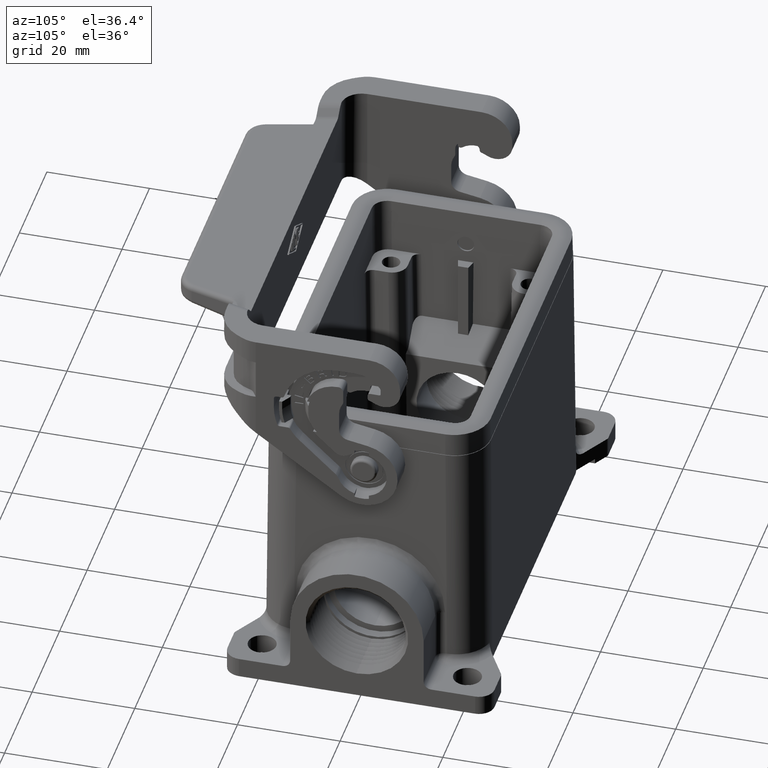
[diagram: clean part render]
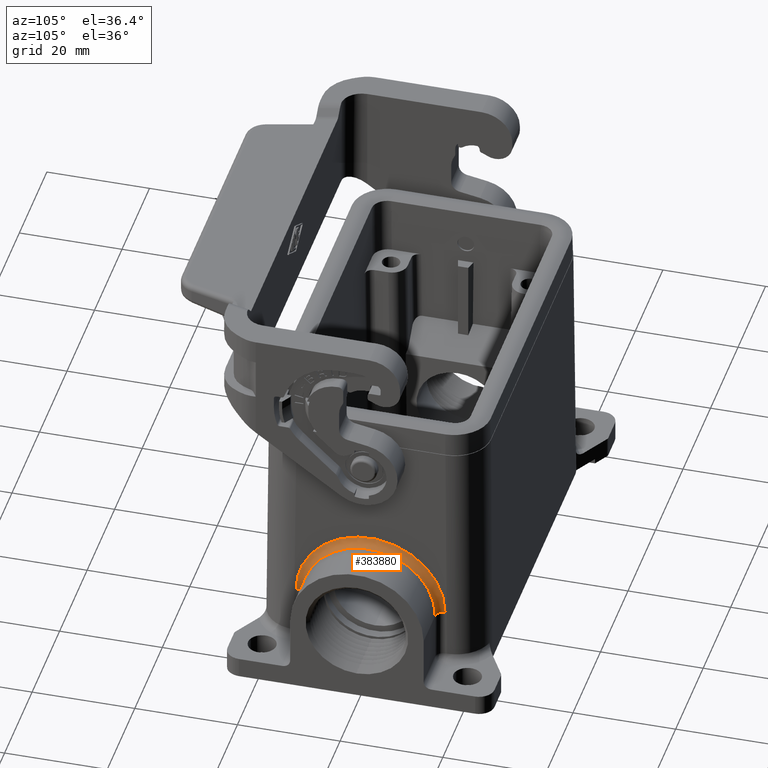
[diagram: same view with one face highlighted and labeled with its STEP entity id]
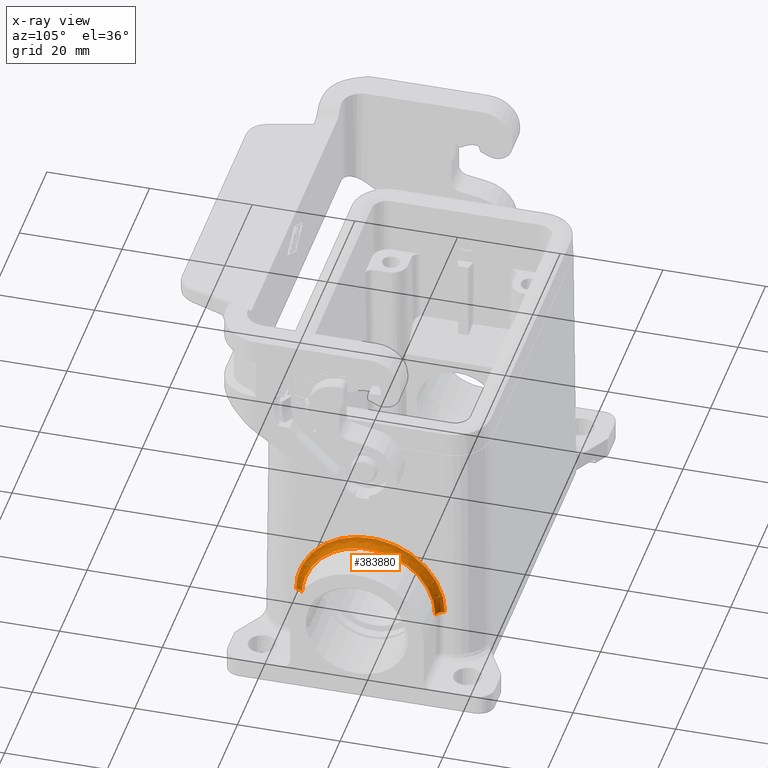
[diagram: x-ray of the same camera — body ghosted, the highlighted face saturated]
A machine part, auxiliary view. The second image highlights one B-rep face of the part: STEP entity #383880.
The next image is the same camera in x-ray: the body ghosted, the highlighted face saturated — about 0% of this face is hidden behind the body in this view.
In plain terms, the highlighted face is a freeform B-spline surface patch.
Its self-contained STEP definition (entity closure, byte-faithful):
#318130=CARTESIAN_POINT('',(27.32493,76.725966907345,-36.5130898032476))
;
#318140=VERTEX_POINT('',#318130);
#318170=CARTESIAN_POINT('',(27.32493,76.725966907345,-36.5130898032476))
;
#318180=CARTESIAN_POINT('',(27.3249299931796,76.7253161365206,
-36.4385188529285));
#318190=CARTESIAN_POINT('',(27.3255052100083,76.7246653754584,
-36.3639490212643));
#318200=CARTESIAN_POINT('',(27.3319115375464,76.7210419928671,
-35.9487505012209));
#318210=CARTESIAN_POINT('',(27.3491747524682,76.7180695320457,
-35.6081402281357));
#318220=CARTESIAN_POINT('',(27.4812943677985,76.7046896257576,
-34.074954827727));
#318230=CARTESIAN_POINT('',(27.7315582049131,76.6944276776374,
-32.8990520449294));
#318240=CARTESIAN_POINT('',(28.5155296999921,76.6746752970227,
-30.635653413453));
#318250=CARTESIAN_POINT('',(29.0462181852548,76.665260928831,
-29.5568736705437));
#318260=CARTESIAN_POINT('',(30.3607253735458,76.6477864910288,
-27.5545014310251));
#318270=CARTESIAN_POINT('',(31.139471418905,76.6397936513064,
-26.6386127165343));
#318280=CARTESIAN_POINT('',(32.9043932032024,76.6256616913577,
-25.0192505023262));
#318290=CARTESIAN_POINT('',(33.8837724354746,76.6195769883624,
-24.3220125996628));
#318300=CARTESIAN_POINT('',(35.9916050938939,76.6096483173953,
-23.1842995959585));
#318310=CARTESIAN_POINT('',(37.1119406937756,76.6058425692067,
-22.748204048295));
#318320=CARTESIAN_POINT('',(39.4342522004192,76.6007222142623,
-22.1614694870344));
#318330=CARTESIAN_POINT('',(40.627285077483,76.599427324379,
-22.0130898032476));
#318340=CARTESIAN_POINT('',(43.0225749224287,76.599427324379,
-22.0130898032476));
#318350=CARTESIAN_POINT('',(44.2156077994054,76.6007222142621,
-22.1614694870125));
#318360=CARTESIAN_POINT('',(46.5379193058885,76.6058425692057,
-22.7482040481876));
#318370=CARTESIAN_POINT('',(47.6582549056992,76.6096483173938,
-23.1842995957884));
#318380=CARTESIAN_POINT('',(49.7660875640822,76.6195769883599,
-24.3220125993741));
#318390=CARTESIAN_POINT('',(50.7454667963798,76.6256616913549,
-25.019250502002));
#318400=CARTESIAN_POINT('',(52.5103885807361,76.639793651303,
-26.6386127161458));
#318410=CARTESIAN_POINT('',(53.2891346261284,76.6477864910252,
-27.5545014306084));
#318420=CARTESIAN_POINT('',(54.6036418144924,76.6652609288269,
-29.5568736700792));
#318430=CARTESIAN_POINT('',(55.1343302997941,76.6746752970185,
-30.6356534129688));
#318440=CARTESIAN_POINT('',(55.9183017949555,76.6944276776329,
-32.8990520444167));
#318450=CARTESIAN_POINT('',(56.1685656321127,76.7046896257531,
-34.074954827205));
#318460=CARTESIAN_POINT('',(56.300685247514,76.7180695320427,
-35.6081402277843));
#318470=CARTESIAN_POINT('',(56.3179484624509,76.7210419928656,
-35.9487505010451));
#318480=CARTESIAN_POINT('',(56.3243547899917,76.7246653754585,
-36.3639490212643));
#318490=CARTESIAN_POINT('',(56.3249300068204,76.7253161365206,
-36.4385188529284));
#318500=CARTESIAN_POINT('',(56.32493,76.725966907345,-36.5130898032476))
;
#318510=B_SPLINE_CURVE_WITH_KNOTS('',3,(#318170,#318180,#318190,#318200,
#318210,#318220,#318230,#318240,#318250,#318260,#318270,#318280,#318290,
#318300,#318310,#318320,#318330,#318340,#318350,#318360,#318370,#318380,
#318390,#318400,#318410,#318420,#318430,#318440,#318450,#318460,#318470,
#318480,#318490,#318500),.UNSPECIFIED.,.F.,.F.,(4,2,2,2,2,2,2,2,2,2,2,2,
2,2,2,2,4),(0.,0.212210779787105,1.18169443604258,4.58462173922191,
7.98754594506585,11.3903216523416,14.7930923705967,18.1958405535293,
21.598586357808,25.0013321618359,28.4040803445186,31.8068510627776,
35.2096267700617,38.6125509759174,42.0154782791102,42.9849619358702,
43.1971727156583),.UNSPECIFIED.);
#318520=CARTESIAN_POINT('',(56.32493,76.725966907345,-36.5130898032476))
;
#318530=VERTEX_POINT('',#318520);
#318540=EDGE_CURVE('',#318140,#318530,#318510,.T.);
#337210=CARTESIAN_POINT('',(54.82493,78.2259097919413,-36.5));
#337220=VERTEX_POINT('',#337210);
#337250=CARTESIAN_POINT('',(28.82493,78.2259097919413,-36.5));
#337260=CARTESIAN_POINT('',(28.82493,78.2252590209226,-36.4331432659632)
);
#337270=CARTESIAN_POINT('',(28.8254457206806,78.2246082594988,
-36.3662875176621));
#337280=CARTESIAN_POINT('',(28.8311893200993,78.2209848767525,
-35.9940405527395));
#337290=CARTESIAN_POINT('',(28.8466666800759,78.2180124160284,
-35.6886658351427));
#337300=CARTESIAN_POINT('',(28.9651187244948,78.2046325125075,
-34.3140861052708));
#337310=CARTESIAN_POINT('',(29.1894932761661,78.1943705606046,
-33.2598280493206));
#337320=CARTESIAN_POINT('',(29.8923641558178,78.174618183248,
-31.2305744385781));
#337330=CARTESIAN_POINT('',(30.3681539394299,78.1652038126979,
-30.2633923578323));
#337340=CARTESIAN_POINT('',(31.5466775271125,78.1477293763544,
-28.4681622239739));
#337350=CARTESIAN_POINT('',(32.2448636716705,78.1397365360299,
-27.6470205560163));
#337360=CARTESIAN_POINT('',(33.8272073688396,78.1256045758267,
-26.195178544725));
#337370=CARTESIAN_POINT('',(34.7052713850381,78.1195198735305,
-25.5700687727918));
#337380=CARTESIAN_POINT('',(36.5950526068252,78.1095912014196,
-24.5500501002489));
#337390=CARTESIAN_POINT('',(37.599491119346,78.1057854542759,
-24.1590679924242));
#337400=CARTESIAN_POINT('',(39.6815638892422,78.1006650983856,
-23.6330300127376));
#337410=CARTESIAN_POINT('',(40.7511791543952,78.0993702089753,-23.5));
#337420=CARTESIAN_POINT('',(42.8986808455256,78.0993702089753,-23.5));
#337430=CARTESIAN_POINT('',(43.9682961106005,78.1006650983854,
-23.633030012718));
#337440=CARTESIAN_POINT('',(46.0503688803528,78.1057854542749,
-24.1590679923279));
#337450=CARTESIAN_POINT('',(47.0548073928099,78.1095912014182,
-24.5500501000964));
#337460=CARTESIAN_POINT('',(48.9445886145645,78.119519873528,
-25.5700687725329));
#337470=CARTESIAN_POINT('',(49.8226526307858,78.1256045758239,
-26.1951785444344));
#337480=CARTESIAN_POINT('',(51.4049963280078,78.1397365360265,
-27.647020555668));
#337490=CARTESIAN_POINT('',(52.1031824725955,78.1477293763507,
-28.4681622236003));
#337500=CARTESIAN_POINT('',(53.2817060603434,78.1652038126939,
-30.2633923574158));
#337510=CARTESIAN_POINT('',(53.7574958439904,78.1746181832438,
-31.2305744381441));
#337520=CARTESIAN_POINT('',(54.460366723716,78.1943705606001,
-33.259828048861));
#337530=CARTESIAN_POINT('',(54.6847412754256,78.204632512503,
-34.3140861048027));
#337540=CARTESIAN_POINT('',(54.8031933199081,78.2180124160253,
-35.6886658348277));
#337550=CARTESIAN_POINT('',(54.8186706798982,78.220984876751,
-35.994040552582));
#337560=CARTESIAN_POINT('',(54.8244142793194,78.2246082594988,
-36.3662875176622));
#337570=CARTESIAN_POINT('',(54.82493,78.2252590209226,-36.4331432659632)
);
#337580=CARTESIAN_POINT('',(54.82493,78.2259097919413,-36.5));
#337590=B_SPLINE_CURVE_WITH_KNOTS('',3,(#337250,#337260,#337270,#337280,
#337290,#337300,#337310,#337320,#337330,#337340,#337350,#337360,#337370,
#337380,#337390,#337400,#337410,#337420,#337430,#337440,#337450,#337460,
#337470,#337480,#337490,#337500,#337510,#337520,#337530,#337540,#337550,
#337560,#337570,#337580),.UNSPECIFIED.,.F.,.F.,(4,2,2,2,2,2,2,2,2,2,2,2,
2,2,2,2,4),(0.,0.212210779787105,1.18169443604258,4.58462173922191,
7.98754594506585,11.3903216523416,14.7930923705967,18.1958405535293,
21.598586357808,25.0013321618359,28.4040803445186,31.8068510627776,
35.2096267700617,38.6125509759174,42.0154782791102,42.9849619358702,
43.1971727156583),.UNSPECIFIED.);
#337600=CARTESIAN_POINT('',(28.82493,78.2259097919413,-36.5));
#337610=VERTEX_POINT('',#337600);
#337620=EDGE_CURVE('',#337610,#337220,#337590,.T.);
#382330=CARTESIAN_POINT('',(28.82493,78.2259097919413,-36.5));
#382340=CARTESIAN_POINT('',(28.82493,78.2252590209226,-36.4331432659632)
);
#382350=CARTESIAN_POINT('',(28.8254457206806,78.2246082594988,
-36.3662875176621));
#382360=CARTESIAN_POINT('',(28.8311893200993,78.2209848767525,
-35.9940405527395));
#382370=CARTESIAN_POINT('',(28.8466666800759,78.2180124160284,
-35.6886658351427));
#382380=CARTESIAN_POINT('',(28.9651187244948,78.2046325125075,
-34.3140861052708));
#382390=CARTESIAN_POINT('',(29.1894932761661,78.1943705606046,
-33.2598280493206));
#382400=CARTESIAN_POINT('',(29.8923641558178,78.174618183248,
-31.2305744385781));
#382410=CARTESIAN_POINT('',(30.3681539394299,78.1652038126979,
-30.2633923578323));
#382420=CARTESIAN_POINT('',(31.5466775271125,78.1477293763544,
-28.4681622239739));
#382430=CARTESIAN_POINT('',(32.2448636716705,78.1397365360299,
-27.6470205560163));
#382440=CARTESIAN_POINT('',(33.8272073688396,78.1256045758267,
-26.195178544725));
#382450=CARTESIAN_POINT('',(34.7052713850381,78.1195198735305,
-25.5700687727918));
#382460=CARTESIAN_POINT('',(36.5950526068252,78.1095912014196,
-24.5500501002489));
#382470=CARTESIAN_POINT('',(37.599491119346,78.1057854542759,
-24.1590679924242));
#382480=CARTESIAN_POINT('',(39.6815638892422,78.1006650983856,
-23.6330300127376));
#382490=CARTESIAN_POINT('',(40.7511791543952,78.0993702089753,-23.5));
#382500=CARTESIAN_POINT('',(42.8986808455256,78.0993702089753,-23.5));
#382510=CARTESIAN_POINT('',(43.9682961106005,78.1006650983854,
-23.633030012718));
#382520=CARTESIAN_POINT('',(46.0503688803528,78.1057854542749,
-24.1590679923279));
#382530=CARTESIAN_POINT('',(47.0548073928099,78.1095912014182,
-24.5500501000964));
#382540=CARTESIAN_POINT('',(48.9445886145645,78.119519873528,
-25.5700687725329));
#382550=CARTESIAN_POINT('',(49.8226526307858,78.1256045758239,
-26.1951785444344));
#382560=CARTESIAN_POINT('',(51.4049963280078,78.1397365360265,
-27.647020555668));
#382570=CARTESIAN_POINT('',(52.1031824725955,78.1477293763507,
-28.4681622236003));
#382580=CARTESIAN_POINT('',(53.2817060603434,78.1652038126939,
-30.2633923574158));
#382590=CARTESIAN_POINT('',(53.7574958439904,78.1746181832438,
-31.2305744381441));
#382600=CARTESIAN_POINT('',(54.460366723716,78.1943705606001,
-33.259828048861));
#382610=CARTESIAN_POINT('',(54.6847412754256,78.204632512503,
-34.3140861048027));
#382620=CARTESIAN_POINT('',(54.8031933199081,78.2180124160253,
-35.6886658348277));
#382630=CARTESIAN_POINT('',(54.8186706798982,78.220984876751,
-35.994040552582));
#382640=CARTESIAN_POINT('',(54.8244142793194,78.2246082594988,
-36.3662875176622));
#382650=CARTESIAN_POINT('',(54.82493,78.2252590209226,-36.4331432659632)
);
#382660=CARTESIAN_POINT('',(54.82493,78.2259097919413,-36.5));
#382670=CARTESIAN_POINT('',(28.82493,77.3472635929298,-36.5076678292136)
);
#382680=CARTESIAN_POINT('',(28.8248895976225,77.3466443134645,
-36.4408093463814));
#382690=CARTESIAN_POINT('',(28.8253659602793,77.3460248150419,
-36.3739519768042));
#382700=CARTESIAN_POINT('',(28.8308910467305,77.342575230001,
-36.0016974321685));
#382710=CARTESIAN_POINT('',(28.8461888033178,77.3397454807929,
-35.6963040082823));
#382720=CARTESIAN_POINT('',(28.9638397526193,77.3270073652581,
-34.3215827422147));
#382730=CARTESIAN_POINT('',(29.1876253620942,77.3172368084823,
-33.2670452873673));
#382740=CARTESIAN_POINT('',(29.8894999894984,77.2984286809105,
-31.2370191722587));
#382750=CARTESIAN_POINT('',(30.3649067053757,77.2894634222224,
-30.2692999543453));
#382760=CARTESIAN_POINT('',(31.5429159056982,77.2728216696094,
-28.4729311781468));
#382770=CARTESIAN_POINT('',(32.2410219631397,77.2652088596894,
-27.6511235745595));
#382780=CARTESIAN_POINT('',(33.8234482983096,77.2517484839256,
-26.1980494468653));
#382790=CARTESIAN_POINT('',(34.7017596659396,77.2459523102769,
-25.5723040182432));
#382800=CARTESIAN_POINT('',(36.5921930664759,77.2364944998298,
-24.551253779063));
#382810=CARTESIAN_POINT('',(37.5971528285606,77.232868876127,
-24.1598177119189));
#382820=CARTESIAN_POINT('',(39.6802843469734,77.2279910373624,
-23.6331943456692));
#382830=CARTESIAN_POINT('',(40.7505762076711,77.2267573746368,
-23.500000001293));
#382840=CARTESIAN_POINT('',(42.8992837922496,77.2267573746367,
-23.500000001293));
#382850=CARTESIAN_POINT('',(43.9695756528692,77.2279910373623,
-23.6331943456496));
#382860=CARTESIAN_POINT('',(46.052707171138,77.2328688761262,
-24.1598177118226));
#382870=CARTESIAN_POINT('',(47.0576669331591,77.2364944998284,
-24.5512537789103));
#382880=CARTESIAN_POINT('',(48.9481003336629,77.2459523102746,
-25.572304017984));
#382890=CARTESIAN_POINT('',(49.8264117013157,77.2517484839229,
-26.1980494465744));
#382900=CARTESIAN_POINT('',(51.4088380365386,77.2652088596861,
-27.651123574211));
#382910=CARTESIAN_POINT('',(52.1069440940099,77.272821669606,
-28.4729311777729));
#382920=CARTESIAN_POINT('',(53.2849532943978,77.2894634222184,
-30.2692999539286));
#382930=CARTESIAN_POINT('',(53.76036001031,77.2984286809066,
-31.2370191718244));
#382940=CARTESIAN_POINT('',(54.4622346377882,77.3172368084781,
-33.2670452869074));
#382950=CARTESIAN_POINT('',(54.6860202473013,77.3270073652537,
-34.3215827417466));
#382960=CARTESIAN_POINT('',(54.8036711966664,77.33974548079,
-35.6963040079673));
#382970=CARTESIAN_POINT('',(54.8189689532672,77.3425752299995,
-36.0016974320109));
#382980=CARTESIAN_POINT('',(54.8244940397206,77.3460248150419,
-36.3739519768042));
#382990=CARTESIAN_POINT('',(54.8249704023775,77.3466443134644,
-36.4408093463814));
#383000=CARTESIAN_POINT('',(54.82493,77.3472635929298,-36.5076678292136)
);
#383010=CARTESIAN_POINT('',(28.2036096564404,76.725966907345,
-36.5130898032476));
#383020=CARTESIAN_POINT('',(28.2035764206775,76.7253614946223,
-36.4437163765869));
#383030=CARTESIAN_POINT('',(28.2040822112314,76.7247467811785,
-36.3732771933535));
#383040=CARTESIAN_POINT('',(28.209922863142,76.721342725166,
-35.9832110099984));
#383050=CARTESIAN_POINT('',(28.2259865725547,76.718549942265,
-35.6631897873279));
#383060=CARTESIAN_POINT('',(28.3496469707374,76.7059706129203,
-34.2217414181838));
#383070=CARTESIAN_POINT('',(28.5839307604511,76.6963428402758,
-33.1185079464447));
#383080=CARTESIAN_POINT('',(29.3201486978506,76.6777683422278,
-30.9900812882876));
#383090=CARTESIAN_POINT('',(29.8176366395527,76.6689338388433,
-29.9777474715482));
#383100=CARTESIAN_POINT('',(31.0529915301189,76.652498287046,
-28.0944197769687));
#383110=CARTESIAN_POINT('',(31.7833993295035,76.6449963123342,
-27.2347786207854));
#383120=CARTESIAN_POINT('',(33.4426611781713,76.6317023640711,
-25.7114430344295));
#383130=CARTESIAN_POINT('',(34.3615233303859,76.6259904573847,
-25.0569233582126));
#383140=CARTESIAN_POINT('',(36.3436065628204,76.616649396671,
-23.9865438202568));
#383150=CARTESIAN_POINT('',(37.3949032119296,76.6130764311888,
-23.5771225280521));
#383160=CARTESIAN_POINT('',(39.5789399786447,76.6082587449688,
-23.0250703673474));
#383170=CARTESIAN_POINT('',(40.6985498744418,76.607042990648,
-22.8857587208418));
#383180=CARTESIAN_POINT('',(42.9513101254752,76.607042990648,
-22.8857587208418));
#383190=CARTESIAN_POINT('',(44.0709200211907,76.6082587449686,
-23.0250703673269));
#383200=CARTESIAN_POINT('',(46.2549567877545,76.6130764311879,
-23.5771225279511));
#383210=CARTESIAN_POINT('',(47.3062534367972,76.6166493966696,
-23.9865438200969));
#383220=CARTESIAN_POINT('',(49.2883366691976,76.6259904573822,
-25.056923357941));
#383230=CARTESIAN_POINT('',(50.2071988214361,76.6317023640684,
-25.7114430341247));
#383240=CARTESIAN_POINT('',(51.8664606701594,76.644996312331,
-27.2347786204203));
#383250=CARTESIAN_POINT('',(52.5968684695752,76.6524982870426,
-28.094419776577));
#383260=CARTESIAN_POINT('',(53.8322233602099,76.6689338388394,
-29.9777474711116));
#383270=CARTESIAN_POINT('',(54.3297113019486,76.6777683422238,
-30.9900812878326));
#383280=CARTESIAN_POINT('',(55.0659292394257,76.6963428402716,
-33.1185079459629));
#383290=CARTESIAN_POINT('',(55.3002130291794,76.705970612916,
-34.2217414176933));
#383300=CARTESIAN_POINT('',(55.4238734274287,76.7185499422621,
-35.6631897869979));
#383310=CARTESIAN_POINT('',(55.4399371368556,76.7213427251646,
-35.9832110098333));
#383320=CARTESIAN_POINT('',(55.4457777887686,76.7247467811785,
-36.3732771933535));
#383330=CARTESIAN_POINT('',(55.4462835793224,76.7253614946223,
-36.4437163765868));
#383340=CARTESIAN_POINT('',(55.4462503435596,76.725966907345,
-36.5130898032476));
#383350=CARTESIAN_POINT('',(27.32493,76.725966907345,-36.5130898032476))
;
#383360=CARTESIAN_POINT('',(27.3249299931796,76.7253161365206,
-36.4385188529285));
#383370=CARTESIAN_POINT('',(27.3255052100083,76.7246653754584,
-36.3639490212643));
#383380=CARTESIAN_POINT('',(27.3319115375464,76.7210419928671,
-35.9487505012209));
#383390=CARTESIAN_POINT('',(27.3491747524682,76.7180695320457,
-35.6081402281357));
#383400=CARTESIAN_POINT('',(27.4812943677985,76.7046896257576,
-34.074954827727));
#383410=CARTESIAN_POINT('',(27.7315582049131,76.6944276776374,
-32.8990520449294));
#383420=CARTESIAN_POINT('',(28.5155296999921,76.6746752970227,
-30.635653413453));
#383430=CARTESIAN_POINT('',(29.0462181852548,76.665260928831,
-29.5568736705437));
#383440=CARTESIAN_POINT('',(30.3607253735458,76.6477864910288,
-27.5545014310251));
#383450=CARTESIAN_POINT('',(31.139471418905,76.6397936513064,
-26.6386127165343));
#383460=CARTESIAN_POINT('',(32.9043932032024,76.6256616913577,
-25.0192505023262));
#383470=CARTESIAN_POINT('',(33.8837724354746,76.6195769883624,
-24.3220125996628));
#383480=CARTESIAN_POINT('',(35.9916050938939,76.6096483173953,
-23.1842995959585));
#383490=CARTESIAN_POINT('',(37.1119406937756,76.6058425692067,
-22.748204048295));
#383500=CARTESIAN_POINT('',(39.4342522004192,76.6007222142623,
-22.1614694870344));
#383510=CARTESIAN_POINT('',(40.627285077483,76.599427324379,
-22.0130898032476));
#383520=CARTESIAN_POINT('',(43.0225749224287,76.599427324379,
-22.0130898032476));
#383530=CARTESIAN_POINT('',(44.2156077994054,76.6007222142621,
-22.1614694870125));
#383540=CARTESIAN_POINT('',(46.5379193058885,76.6058425692057,
-22.7482040481876));
#383550=CARTESIAN_POINT('',(47.6582549056992,76.6096483173938,
-23.1842995957884));
#383560=CARTESIAN_POINT('',(49.7660875640822,76.6195769883599,
-24.3220125993741));
#383570=CARTESIAN_POINT('',(50.7454667963798,76.6256616913549,
-25.019250502002));
#383580=CARTESIAN_POINT('',(52.5103885807361,76.639793651303,
-26.6386127161458));
#383590=CARTESIAN_POINT('',(53.2891346261284,76.6477864910252,
-27.5545014306084));
#383600=CARTESIAN_POINT('',(54.6036418144924,76.6652609288269,
-29.5568736700792));
#383610=CARTESIAN_POINT('',(55.1343302997941,76.6746752970185,
-30.6356534129688));
#383620=CARTESIAN_POINT('',(55.9183017949555,76.6944276776329,
-32.8990520444167));
#383630=CARTESIAN_POINT('',(56.1685656321127,76.7046896257531,
-34.074954827205));
#383640=CARTESIAN_POINT('',(56.300685247514,76.7180695320427,
-35.6081402277843));
#383650=CARTESIAN_POINT('',(56.3179484624509,76.7210419928656,
-35.9487505010451));
#383660=CARTESIAN_POINT('',(56.3243547899917,76.7246653754585,
-36.3639490212643));
#383670=CARTESIAN_POINT('',(56.3249300068204,76.7253161365206,
-36.4385188529284));
#383680=CARTESIAN_POINT('',(56.32493,76.725966907345,-36.5130898032476))
;
#383690=(BOUNDED_SURFACE() B_SPLINE_SURFACE(3,3,((#382330,#382670,
#383010,#383350),(#382340,#382680,#383020,#383360),(#382350,#382690,
#383030,#383370),(#382360,#382700,#383040,#383380),(#382370,#382710,
#383050,#383390),(#382380,#382720,#383060,#383400),(#382390,#382730,
#383070,#383410),(#382400,#382740,#383080,#383420),(#382410,#382750,
#383090,#383430),(#382420,#382760,#383100,#383440),(#382430,#382770,
#383110,#383450),(#382440,#382780,#383120,#383460),(#382450,#382790,
#383130,#383470),(#382460,#382800,#383140,#383480),(#382470,#382810,
#383150,#383490),(#382480,#382820,#383160,#383500),(#382490,#382830,
#383170,#383510),(#382500,#382840,#383180,#383520),(#382510,#382850,
#383190,#383530),(#382520,#382860,#383200,#383540),(#382530,#382870,
#383210,#383550),(#382540,#382880,#383220,#383560),(#382550,#382890,
#383230,#383570),(#382560,#382900,#383240,#383580),(#382570,#382910,
#383250,#383590),(#382580,#382920,#383260,#383600),(#382590,#382930,
#383270,#383610),(#382600,#382940,#383280,#383620),(#382610,#382950,
#383290,#383630),(#382620,#382960,#383300,#383640),(#382630,#382970,
#383310,#383650),(#382640,#382980,#383320,#383660),(#382650,#382990,
#383330,#383670),(#382660,#383000,#383340,#383680)),.UNSPECIFIED.,.F.,
.F.,.F.) B_SPLINE_SURFACE_WITH_KNOTS((4,2,2,2,2,2,2,2,2,2,2,2,2,2,2,2,4)
,(4,4),(0.,0.212210779787105,1.18169443604258,4.58462173922191,
7.98754594506585,11.3903216523416,14.7930923705967,18.1958405535293,
21.598586357808,25.0013321618359,28.4040803445186,31.8068510627776,
35.2096267700617,38.6125509759174,42.0154782791102,42.9849619358702,
43.1971727156583),(0.,1.),.UNSPECIFIED.) GEOMETRIC_REPRESENTATION_ITEM()
 RATIONAL_B_SPLINE_SURFACE(((1.,0.804737854124364,0.804737854124364,1.),
(1.,0.804748652417522,0.804748652417522,1.),(1.,0.804759240220617,
0.804759240220617,1.),(1.,0.80481790192455,0.80481790192455,1.),(1.,
0.804866205888159,0.804866205888159,1.),(1.,0.805083394827656,
0.805083394827656,1.),(1.,0.80525007103118,0.80525007103118,1.),(1.,
0.80557044811891,0.80557044811891,1.),(1.,0.805723199003792,
0.805723199003792,1.),(1.,0.806006357404351,0.806006357404351,1.),(1.,
0.806135924657339,0.806135924657339,1.),(1.,0.806364735286785,
0.806364735286785,1.),(1.,0.806463297809535,0.806463297809535,1.),(1.,
0.806623953803557,0.806623953803557,1.),(1.,0.806685568848721,
0.806685568848721,1.),(1.,0.806768389463524,0.806768389463524,1.),(1.,
0.806789348109478,0.806789348109478,1.),(1.,0.80678934810947,
0.80678934810947,1.),(1.,0.806768389463533,0.806768389463533,1.),(1.,
0.806685568848733,0.806685568848733,1.),(1.,0.806623953803587,
0.806623953803587,1.),(1.,0.806463297809576,0.806463297809576,1.),(1.,
0.806364735286829,0.806364735286829,1.),(1.,0.806135924657388,
0.806135924657388,1.),(1.,0.806006357404413,0.806006357404413,1.),(1.,
0.805723199003856,0.805723199003856,1.),(1.,0.805570448118979,
0.805570448118979,1.),(1.,0.805250071031246,0.805250071031246,1.),(1.,
0.805083394827734,0.805083394827734,1.),(1.,0.804866205888214,
0.804866205888214,1.),(1.,0.804817901924572,0.804817901924572,1.),(1.,
0.804759240220625,0.804759240220625,1.),(1.,0.804748652417516,
0.804748652417516,1.),(1.,0.804737854124364,0.804737854124364,1.))) 
REPRESENTATION_ITEM('') SURFACE());
#383700=CARTESIAN_POINT('',(56.32493,76.725966907345,-36.5130898032476))
;
#383710=CARTESIAN_POINT('',(55.4462503435596,76.725966907345,
-36.5130898032476));
#383720=CARTESIAN_POINT('',(54.82493,77.3472635929298,-36.5076678292136)
);
#383730=CARTESIAN_POINT('',(54.82493,78.2259097919413,-36.5));
#383740=(BOUNDED_CURVE() B_SPLINE_CURVE(3,(#383700,#383710,#383720,
#383730),.UNSPECIFIED.,.F.,.F.) B_SPLINE_CURVE_WITH_KNOTS((4,4),(0.,1.),
.UNSPECIFIED.) CURVE() GEOMETRIC_REPRESENTATION_ITEM() 
RATIONAL_B_SPLINE_CURVE((1.,0.804737854124367,0.804737854124367,1.)) 
REPRESENTATION_ITEM(''));
#383750=EDGE_CURVE('',#318530,#337220,#383740,.T.);
#383760=ORIENTED_EDGE('',*,*,#383750,.T.);
#383770=ORIENTED_EDGE('',*,*,#318540,.T.);
#383780=CARTESIAN_POINT('',(28.82493,78.2259097919413,-36.5));
#383790=CARTESIAN_POINT('',(28.82493,77.3472635929298,-36.5076678292136)
);
#383800=CARTESIAN_POINT('',(28.2036096564404,76.725966907345,
-36.5130898032476));
#383810=CARTESIAN_POINT('',(27.32493,76.725966907345,-36.5130898032476))
;
#383820=(BOUNDED_CURVE() B_SPLINE_CURVE(3,(#383780,#383790,#383800,
#383810),.UNSPECIFIED.,.F.,.F.) B_SPLINE_CURVE_WITH_KNOTS((4,4),(0.,1.),
.UNSPECIFIED.) CURVE() GEOMETRIC_REPRESENTATION_ITEM() 
RATIONAL_B_SPLINE_CURVE((1.,0.804737854124367,0.804737854124367,1.)) 
REPRESENTATION_ITEM(''));
#383830=EDGE_CURVE('',#337610,#318140,#383820,.T.);
#383840=ORIENTED_EDGE('',*,*,#383830,.T.);
#383850=ORIENTED_EDGE('',*,*,#337620,.F.);
#383860=EDGE_LOOP('',(#383850,#383840,#383770,#383760));
#383870=FACE_OUTER_BOUND('',#383860,.T.);
#383880=ADVANCED_FACE('',(#383870),#383690,.F.);